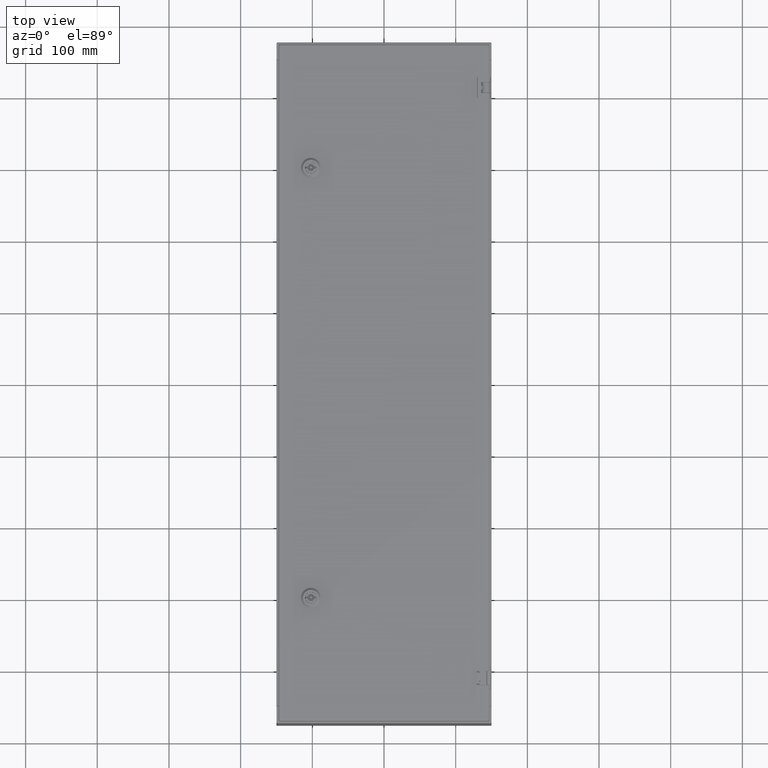
[diagram: clean part render]
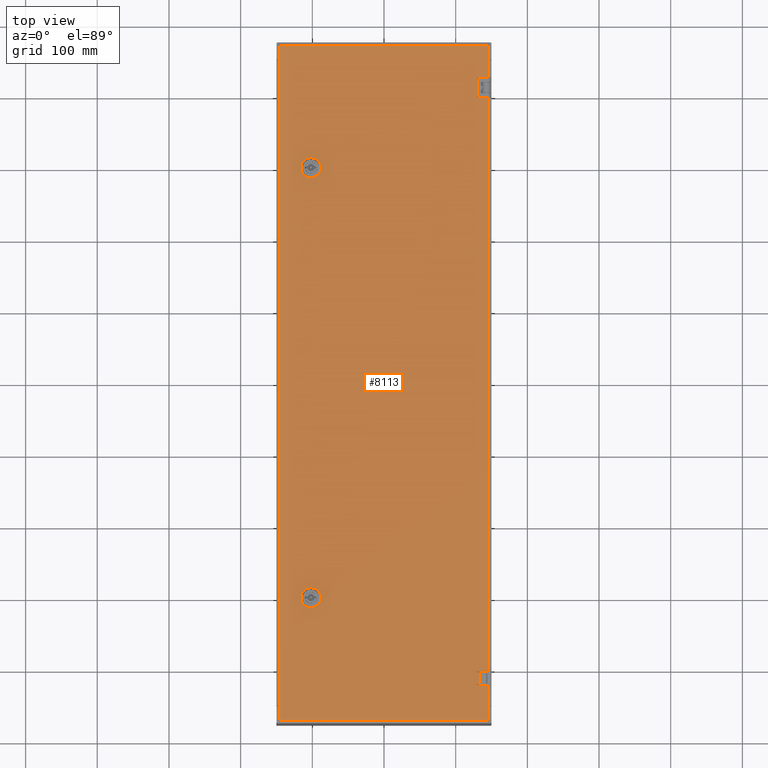
[diagram: same view with one face highlighted and labeled with its STEP entity id]
A machine part, top view. The second image highlights one B-rep face of the part: STEP entity #8113.
In plain terms, the highlighted planar face has unit normal (0, -0, 1).
Its self-contained STEP definition (entity closure, byte-faithful):
#284 = DIRECTION ( 'NONE',  ( 5.105964695398040900E-015, 1.000000000000000000, 3.648940030274840400E-015 ) ) ;
#1275 = CIRCLE ( 'NONE', #74012, 11.24999999999998200 ) ;
#1320 = CARTESIAN_POINT ( 'NONE',  ( -102.0000000000933900, -300.1000000000099700, 213.1000000000030100 ) ) ;
#1385 = VERTEX_POINT ( 'NONE', #6808 ) ;
#2056 = VECTOR ( 'NONE', #76307, 1000.000000000000000 ) ;
#2410 = ORIENTED_EDGE ( 'NONE', *, *, #59798, .F. ) ;
#3129 = DIRECTION ( 'NONE',  ( 1.215000322574152200E-014, -3.648940030274900400E-015, 1.000000000000000000 ) ) ;
#3294 = CARTESIAN_POINT ( 'NONE',  ( -92.20000000008890600, 305.4247171873220200, 213.1000000000050000 ) ) ;
#3516 = DIRECTION ( 'NONE',  ( 8.873882763576131300E-015, 1.000000000000000000, 3.648940030274790700E-015 ) ) ;
#4075 = CARTESIAN_POINT ( 'NONE',  ( -111.8000000000890000, 294.3752828126579900, 213.1000000000050000 ) ) ;
#4395 = EDGE_CURVE ( 'NONE', #37467, #12018, #64899, .T. ) ;
#4510 = CARTESIAN_POINT ( 'NONE',  ( -9.138696049904019300E-011, -0.1000000000107446100, 213.1000000000025200 ) ) ;
#4516 = CARTESIAN_POINT ( 'NONE',  ( 145.4999999999110100, 421.8999999999879800, 213.1000000000025200 ) ) ;
#4537 = VERTEX_POINT ( 'NONE', #3294 ) ;
#4594 = DIRECTION ( 'NONE',  ( 7.401486830834388500E-015, 1.000000000000000000, 2.467162276944796200E-015 ) ) ;
#4691 = CARTESIAN_POINT ( 'NONE',  ( -9.374698904002229300E-011, -309.9000000000104900, 213.1000000000000200 ) ) ;
#4736 = CARTESIAN_POINT ( 'NONE',  ( 145.4999999999056100, -402.1000000000120200, 213.1000000000000200 ) ) ;
#6244 = DIRECTION ( 'NONE',  ( 7.401486830834388500E-015, 1.000000000000000000, 2.467162276944796200E-015 ) ) ;
#6351 = DIRECTION ( 'NONE',  ( 7.617910074183431100E-015, 1.000000000000000000, 3.648940030274805700E-015 ) ) ;
#6692 = CARTESIAN_POINT ( 'NONE',  ( 132.4999999999041900, -402.1000000000120200, 213.1000000000000200 ) ) ;
#6698 = CARTESIAN_POINT ( 'NONE',  ( -145.5000000000877900, 470.5464466093969800, 213.1000000000060200 ) ) ;
#6763 = AXIS2_PLACEMENT_3D ( 'NONE', #78604, #3129, #17034 ) ;
#6808 = CARTESIAN_POINT ( 'NONE',  ( 132.4999999999041900, -422.1000000000119600, 213.1000000000000200 ) ) ;
#6824 = VECTOR ( 'NONE', #84637, 1000.000000000000000 ) ;
#6973 = CARTESIAN_POINT ( 'NONE',  ( -107.5247171874205900, 309.6999999999899800, 213.1000000000050000 ) ) ;
#7185 = CARTESIAN_POINT ( 'NONE',  ( 146.9999999999106100, 401.8999999999879800, 213.1000000000025200 ) ) ;
#7625 = EDGE_CURVE ( 'NONE', #34832, #45114, #8039, .T. ) ;
#7928 = ORIENTED_EDGE ( 'NONE', *, *, #42952, .F. ) ;
#8039 = LINE ( 'NONE', #40549, #60225 ) ;
#8113 = ADVANCED_FACE ( 'NONE', ( #62236, #42014, #53720 ), #37221, .T. ) ;
#8717 = VERTEX_POINT ( 'NONE', #34824 ) ;
#9227 = EDGE_CURVE ( 'NONE', #29786, #41333, #35490, .T. ) ;
#9535 = LINE ( 'NONE', #22475, #2056 ) ;
#9832 = AXIS2_PLACEMENT_3D ( 'NONE', #79476, #84470, #22965 ) ;
#11056 = DIRECTION ( 'NONE',  ( -7.617910074183431100E-015, -1.000000000000000000, -3.648940030274805700E-015 ) ) ;
#12018 = VERTEX_POINT ( 'NONE', #50309 ) ;
#12737 = VECTOR ( 'NONE', #77042, 1000.000000000000000 ) ;
#13094 = CIRCLE ( 'NONE', #6763, 11.24999999999998200 ) ;
#13101 = VECTOR ( 'NONE', #36507, 1000.000000000000000 ) ;
#13641 = ORIENTED_EDGE ( 'NONE', *, *, #40967, .T. ) ;
#14354 = LINE ( 'NONE', #69156, #66506 ) ;
#15157 = EDGE_CURVE ( 'NONE', #41504, #60327, #23452, .T. ) ;
#15194 = CARTESIAN_POINT ( 'NONE',  ( -107.5247171874210000, 290.0999999999899600, 213.1000000000050000 ) ) ;
#15205 = ORIENTED_EDGE ( 'NONE', *, *, #49636, .T. ) ;
#15212 = VERTEX_POINT ( 'NONE', #58669 ) ;
#15938 = DIRECTION ( 'NONE',  ( 7.401486830834388500E-015, 1.000000000000000000, 2.467162276944796200E-015 ) ) ;
#16763 = CARTESIAN_POINT ( 'NONE',  ( -96.47528281276160600, -290.3000000000100200, 213.1000000000030100 ) ) ;
#17034 = DIRECTION ( 'NONE',  ( 7.401486830834388500E-015, 1.000000000000000000, 2.467162276944796200E-015 ) ) ;
#17908 = VERTEX_POINT ( 'NONE', #4516 ) ;
#18531 = LINE ( 'NONE', #37932, #43092 ) ;
#18554 = AXIS2_PLACEMENT_3D ( 'NONE', #1320, #41180, #49202 ) ;
#19041 = EDGE_CURVE ( 'NONE', #63948, #68658, #1275, .T. ) ;
#19365 = VECTOR ( 'NONE', #77811, 1000.000000000000000 ) ;
#19926 = CARTESIAN_POINT ( 'NONE',  ( 145.4999999999050100, -470.7464466094180000, 213.1000000000000200 ) ) ;
#20384 = AXIS2_PLACEMENT_3D ( 'NONE', #76874, #29604, #84531 ) ;
#20509 = EDGE_CURVE ( 'NONE', #1385, #45114, #9535, .T. ) ;
#20944 = LINE ( 'NONE', #24459, #73109 ) ;
#21518 = DIRECTION ( 'NONE',  ( -1.000000000000000000, 7.617910074183390100E-015, 1.215000322574156200E-014 ) ) ;
#21626 = CARTESIAN_POINT ( 'NONE',  ( -96.47528281276170500, -309.9000000000099800, 213.1000000000025200 ) ) ;
#22259 = CARTESIAN_POINT ( 'NONE',  ( -96.47528281275720000, 290.0999999999899600, 213.1000000000050000 ) ) ;
#22475 = CARTESIAN_POINT ( 'NONE',  ( 132.4999999999041900, -422.1000000000119600, 213.1000000000000200 ) ) ;
#22965 = DIRECTION ( 'NONE',  ( 7.401486830834388500E-015, 1.000000000000000000, 2.467162276944796200E-015 ) ) ;
#23452 = LINE ( 'NONE', #45000, #76730 ) ;
#24459 = CARTESIAN_POINT ( 'NONE',  ( -9.359767800256830100E-011, -290.3000000000109800, 213.1000000000000200 ) ) ;
#24846 = VECTOR ( 'NONE', #284, 1000.000000000000000 ) ;
#24906 = LINE ( 'NONE', #84330, #6824 ) ;
#26529 = VERTEX_POINT ( 'NONE', #21626 ) ;
#26692 = EDGE_CURVE ( 'NONE', #68658, #4537, #76432, .T. ) ;
#26760 = EDGE_CURVE ( 'NONE', #8717, #26529, #67884, .T. ) ;
#27058 = CARTESIAN_POINT ( 'NONE',  ( 145.4999999999050100, -470.7464466094180000, 213.1000000000000200 ) ) ;
#27075 = ORIENTED_EDGE ( 'NONE', *, *, #52477, .F. ) ;
#27515 = EDGE_CURVE ( 'NONE', #59130, #41539, #20944, .T. ) ;
#28256 = ORIENTED_EDGE ( 'NONE', *, *, #19041, .F. ) ;
#29056 = VECTOR ( 'NONE', #21518, 1000.000000000000000 ) ;
#29604 = DIRECTION ( 'NONE',  ( 1.215000322574152200E-014, -3.648940030274900400E-015, 1.000000000000000000 ) ) ;
#29726 = VECTOR ( 'NONE', #80695, 1000.000000000000000 ) ;
#29786 = VERTEX_POINT ( 'NONE', #87171 ) ;
#29957 = CARTESIAN_POINT ( 'NONE',  ( -111.8000000000912000, -0.1000000000098930100, 213.1000000000040000 ) ) ;
#32700 = VERTEX_POINT ( 'NONE', #62402 ) ;
#32790 = DIRECTION ( 'NONE',  ( 1.215000322574152200E-014, -3.648940030274900400E-015, 1.000000000000000000 ) ) ;
#32865 = LINE ( 'NONE', #6698, #29726 ) ;
#33644 = ORIENTED_EDGE ( 'NONE', *, *, #65286, .F. ) ;
#33846 = CARTESIAN_POINT ( 'NONE',  ( -92.20000000009190400, -0.1000000000102738200, 213.1000000000040000 ) ) ;
#34824 = CARTESIAN_POINT ( 'NONE',  ( -107.5247171874254000, -309.9000000000099800, 213.1000000000030100 ) ) ;
#34832 = VERTEX_POINT ( 'NONE', #59321 ) ;
#35386 = AXIS2_PLACEMENT_3D ( 'NONE', #77642, #50333, #44678 ) ;
#35490 = LINE ( 'NONE', #33846, #24846 ) ;
#35723 = EDGE_CURVE ( 'NONE', #47811, #12018, #45589, .T. ) ;
#36069 = CARTESIAN_POINT ( 'NONE',  ( -96.47528281275701500, 309.6999999999899800, 213.1000000000050000 ) ) ;
#36473 = ORIENTED_EDGE ( 'NONE', *, *, #50266, .F. ) ;
#36507 = DIRECTION ( 'NONE',  ( -7.617910074183431100E-015, -1.000000000000000000, -3.648940030274805700E-015 ) ) ;
#37034 = EDGE_LOOP ( 'NONE', ( #40553, #60882, #36473, #72727, #7928, #58501, #80191, #84737 ) ) ;
#37221 = PLANE ( 'NONE',  #69606 ) ;
#37467 = VERTEX_POINT ( 'NONE', #43059 ) ;
#37504 = LINE ( 'NONE', #85165, #19365 ) ;
#37932 = CARTESIAN_POINT ( 'NONE',  ( -145.6464466095016000, -470.6000000000100300, 213.1000000000025200 ) ) ;
#37959 = ORIENTED_EDGE ( 'NONE', *, *, #38492, .T. ) ;
#38492 = EDGE_CURVE ( 'NONE', #86300, #15212, #24906, .T. ) ;
#39153 = DIRECTION ( 'NONE',  ( 1.000000000000000000, -7.617910074183390100E-015, -1.215000322574156200E-014 ) ) ;
#39673 = CIRCLE ( 'NONE', #20384, 11.24999999999998200 ) ;
#40549 = CARTESIAN_POINT ( 'NONE',  ( 145.4999999999050100, -470.7464466094180000, 213.1000000000000200 ) ) ;
#40553 = ORIENTED_EDGE ( 'NONE', *, *, #53180, .F. ) ;
#40967 = EDGE_CURVE ( 'NONE', #15212, #83741, #32865, .T. ) ;
#41100 = CIRCLE ( 'NONE', #45472, 11.24999999999998200 ) ;
#41180 = DIRECTION ( 'NONE',  ( 1.215000322574152200E-014, -3.648940030274900400E-015, 1.000000000000000000 ) ) ;
#41261 = VECTOR ( 'NONE', #74360, 1000.000000000000000 ) ;
#41333 = VERTEX_POINT ( 'NONE', #65510 ) ;
#41504 = VERTEX_POINT ( 'NONE', #81804 ) ;
#41539 = VERTEX_POINT ( 'NONE', #55103 ) ;
#42014 = FACE_BOUND ( 'NONE', #58588, .T. ) ;
#42444 = DIRECTION ( 'NONE',  ( 1.215000322574152200E-014, -3.648940030274900400E-015, 1.000000000000000000 ) ) ;
#42633 = ORIENTED_EDGE ( 'NONE', *, *, #48988, .F. ) ;
#42952 = EDGE_CURVE ( 'NONE', #41539, #41504, #77271, .T. ) ;
#43059 = CARTESIAN_POINT ( 'NONE',  ( 132.4999999999104100, 401.8999999999884900, 213.1000000000025200 ) ) ;
#43092 = VECTOR ( 'NONE', #78642, 1000.000000000000000 ) ;
#44678 = DIRECTION ( 'NONE',  ( 7.401486830834388500E-015, 1.000000000000000000, 2.467162276944796200E-015 ) ) ;
#45000 = CARTESIAN_POINT ( 'NONE',  ( -111.8000000000912000, -0.1000000000098930100, 213.1000000000040000 ) ) ;
#45114 = VERTEX_POINT ( 'NONE', #87017 ) ;
#45472 = AXIS2_PLACEMENT_3D ( 'NONE', #83680, #42444, #15938 ) ;
#45589 = LINE ( 'NONE', #27058, #51969 ) ;
#46077 = LINE ( 'NONE', #76552, #29056 ) ;
#46549 = CARTESIAN_POINT ( 'NONE',  ( 132.4999999999106100, 421.8999999999884900, 213.1000000000025200 ) ) ;
#47005 = EDGE_CURVE ( 'NONE', #41333, #59130, #88006, .T. ) ;
#47242 = ORIENTED_EDGE ( 'NONE', *, *, #4395, .F. ) ;
#47547 = EDGE_CURVE ( 'NONE', #17908, #86300, #84775, .T. ) ;
#47620 = DIRECTION ( 'NONE',  ( 7.617910074183431100E-015, 1.000000000000000000, 3.648940030274805700E-015 ) ) ;
#47811 = VERTEX_POINT ( 'NONE', #4736 ) ;
#48386 = EDGE_CURVE ( 'NONE', #72847, #53102, #41100, .T. ) ;
#48988 = EDGE_CURVE ( 'NONE', #78941, #37467, #50575, .T. ) ;
#49202 = DIRECTION ( 'NONE',  ( 7.401486830834388500E-015, 1.000000000000000000, 2.467162276944796200E-015 ) ) ;
#49556 = DIRECTION ( 'NONE',  ( -1.000000000000000000, 7.617910074183390100E-015, 1.215000322574156200E-014 ) ) ;
#49636 = EDGE_CURVE ( 'NONE', #83741, #34832, #18531, .T. ) ;
#49871 = VECTOR ( 'NONE', #39153, 1000.000000000000000 ) ;
#50266 = EDGE_CURVE ( 'NONE', #60327, #8717, #13094, .T. ) ;
#50309 = CARTESIAN_POINT ( 'NONE',  ( 145.4999999999106100, 401.8999999999879800, 213.1000000000025200 ) ) ;
#50333 = DIRECTION ( 'NONE',  ( 1.215000322574152200E-014, -3.648940030274900400E-015, 1.000000000000000000 ) ) ;
#50575 = LINE ( 'NONE', #83481, #87638 ) ;
#51156 = VERTEX_POINT ( 'NONE', #76840 ) ;
#51443 = LINE ( 'NONE', #29957, #13101 ) ;
#51969 = VECTOR ( 'NONE', #47620, 1000.000000000000000 ) ;
#52088 = DIRECTION ( 'NONE',  ( 1.215000322574153300E-014, -3.648940030274900400E-015, 1.000000000000000000 ) ) ;
#52477 = EDGE_CURVE ( 'NONE', #47811, #32700, #71273, .T. ) ;
#52747 = CARTESIAN_POINT ( 'NONE',  ( -102.0000000000889900, 299.8999999999899700, 213.1000000000050000 ) ) ;
#53102 = VERTEX_POINT ( 'NONE', #15194 ) ;
#53180 = EDGE_CURVE ( 'NONE', #26529, #29786, #81916, .T. ) ;
#53664 = EDGE_CURVE ( 'NONE', #53102, #63948, #86073, .T. ) ;
#53720 = FACE_OUTER_BOUND ( 'NONE', #73988, .T. ) ;
#55103 = CARTESIAN_POINT ( 'NONE',  ( -107.5247171874252100, -290.3000000000100200, 213.1000000000030100 ) ) ;
#55196 = CARTESIAN_POINT ( 'NONE',  ( -92.20000000008900500, 294.3752828126579900, 213.1000000000050000 ) ) ;
#57847 = ORIENTED_EDGE ( 'NONE', *, *, #87249, .F. ) ;
#58066 = ORIENTED_EDGE ( 'NONE', *, *, #47547, .T. ) ;
#58324 = DIRECTION ( 'NONE',  ( 1.215000322574152200E-014, -3.648940030274900400E-015, 1.000000000000000000 ) ) ;
#58400 = VECTOR ( 'NONE', #3516, 1000.000000000000000 ) ;
#58501 = ORIENTED_EDGE ( 'NONE', *, *, #27515, .F. ) ;
#58588 = EDGE_LOOP ( 'NONE', ( #2410, #33644, #57847, #65327, #28256, #61395, #80856, #67058 ) ) ;
#58669 = CARTESIAN_POINT ( 'NONE',  ( -145.5000000000874000, 470.3999999999899700, 213.1000000000060200 ) ) ;
#59130 = VERTEX_POINT ( 'NONE', #16763 ) ;
#59321 = CARTESIAN_POINT ( 'NONE',  ( 145.4999999999012100, -470.6000000000120200, 213.1000000000000200 ) ) ;
#59487 = CARTESIAN_POINT ( 'NONE',  ( 145.4999999999124300, 470.3999999999899700, 213.1000000000025200 ) ) ;
#59798 = EDGE_CURVE ( 'NONE', #82690, #51156, #39673, .T. ) ;
#59818 = CARTESIAN_POINT ( 'NONE',  ( -102.0000000000933900, -300.1000000000099700, 213.1000000000030100 ) ) ;
#60225 = VECTOR ( 'NONE', #6351, 1000.000000000000000 ) ;
#60327 = VERTEX_POINT ( 'NONE', #82122 ) ;
#60390 = CARTESIAN_POINT ( 'NONE',  ( -145.5000000000949900, -470.6000000000100300, 213.1000000000025200 ) ) ;
#60882 = ORIENTED_EDGE ( 'NONE', *, *, #26760, .F. ) ;
#61395 = ORIENTED_EDGE ( 'NONE', *, *, #53664, .F. ) ;
#61501 = DIRECTION ( 'NONE',  ( -4.842352512620540500E-015, -1.000000000000000000, -3.648940030274840400E-015 ) ) ;
#61967 = ORIENTED_EDGE ( 'NONE', *, *, #7625, .T. ) ;
#62236 = FACE_BOUND ( 'NONE', #37034, .T. ) ;
#62402 = CARTESIAN_POINT ( 'NONE',  ( 132.4999999999041900, -402.1000000000120200, 213.1000000000000200 ) ) ;
#63457 = VERTEX_POINT ( 'NONE', #36069 ) ;
#63948 = VERTEX_POINT ( 'NONE', #22259 ) ;
#64075 = DIRECTION ( 'NONE',  ( 1.000000000000000000, -7.617910074183390100E-015, -1.215000322574156200E-014 ) ) ;
#64870 = DIRECTION ( 'NONE',  ( 1.000000000000000000, -7.617910074183390100E-015, -1.215000322574156200E-014 ) ) ;
#64899 = LINE ( 'NONE', #7185, #12737 ) ;
#65286 = EDGE_CURVE ( 'NONE', #63457, #82690, #37504, .T. ) ;
#65327 = ORIENTED_EDGE ( 'NONE', *, *, #26692, .F. ) ;
#65510 = CARTESIAN_POINT ( 'NONE',  ( -92.20000000009349600, -294.5752828126779800, 213.1000000000025200 ) ) ;
#66373 = ORIENTED_EDGE ( 'NONE', *, *, #82154, .F. ) ;
#66506 = VECTOR ( 'NONE', #61501, 1000.000000000000000 ) ;
#66607 = ORIENTED_EDGE ( 'NONE', *, *, #35723, .T. ) ;
#67058 = ORIENTED_EDGE ( 'NONE', *, *, #70026, .F. ) ;
#67884 = LINE ( 'NONE', #4691, #49871 ) ;
#68046 = VECTOR ( 'NONE', #64075, 1000.000000000000000 ) ;
#68658 = VERTEX_POINT ( 'NONE', #55196 ) ;
#69156 = CARTESIAN_POINT ( 'NONE',  ( 132.4999999999041900, -402.1000000000120200, 213.1000000000000200 ) ) ;
#69560 = AXIS2_PLACEMENT_3D ( 'NONE', #59818, #58324, #6244 ) ;
#69606 = AXIS2_PLACEMENT_3D ( 'NONE', #4510, #52088, #64870 ) ;
#70026 = EDGE_CURVE ( 'NONE', #51156, #72847, #51443, .T. ) ;
#70576 = CARTESIAN_POINT ( 'NONE',  ( -8.917624299551220100E-011, 290.0999999999894500, 213.1000000000035200 ) ) ;
#71273 = LINE ( 'NONE', #6692, #87138 ) ;
#71573 = CARTESIAN_POINT ( 'NONE',  ( -92.20000000009159200, -0.1000000000099264000, 213.1000000000040000 ) ) ;
#72727 = ORIENTED_EDGE ( 'NONE', *, *, #15157, .F. ) ;
#72847 = VERTEX_POINT ( 'NONE', #4075 ) ;
#72917 = DIRECTION ( 'NONE',  ( -1.000000000000000000, 7.617910074183390100E-015, 1.215000322574156200E-014 ) ) ;
#73109 = VECTOR ( 'NONE', #72917, 1000.000000000000000 ) ;
#73988 = EDGE_LOOP ( 'NONE', ( #27075, #66607, #47242, #42633, #82116, #58066, #37959, #13641, #15205, #61967, #75597, #66373 ) ) ;
#74012 = AXIS2_PLACEMENT_3D ( 'NONE', #52747, #32790, #4594 ) ;
#74360 = DIRECTION ( 'NONE',  ( 7.617910074183431100E-015, 1.000000000000000000, 3.648940030274805700E-015 ) ) ;
#75597 = ORIENTED_EDGE ( 'NONE', *, *, #20509, .F. ) ;
#76307 = DIRECTION ( 'NONE',  ( 1.000000000000000000, -7.617910074183390100E-015, -1.215000322574156200E-014 ) ) ;
#76432 = LINE ( 'NONE', #71573, #58400 ) ;
#76552 = CARTESIAN_POINT ( 'NONE',  ( 146.9999999999106100, 421.8999999999879800, 213.1000000000025200 ) ) ;
#76730 = VECTOR ( 'NONE', #11056, 1000.000000000000000 ) ;
#76840 = CARTESIAN_POINT ( 'NONE',  ( -111.8000000000890000, 305.4247171873220200, 213.1000000000050000 ) ) ;
#76874 = CARTESIAN_POINT ( 'NONE',  ( -102.0000000000889900, 299.8999999999899700, 213.1000000000050000 ) ) ;
#77004 = DIRECTION ( 'NONE',  ( -1.039346763574632100E-014, -1.000000000000000000, -3.648940030274775700E-015 ) ) ;
#77042 = DIRECTION ( 'NONE',  ( 1.000000000000000000, -7.617910074183390100E-015, -1.215000322574156200E-014 ) ) ;
#77271 = CIRCLE ( 'NONE', #69560, 11.24999999999998200 ) ;
#77642 = CARTESIAN_POINT ( 'NONE',  ( -102.0000000000933900, -300.1000000000099700, 213.1000000000030100 ) ) ;
#77811 = DIRECTION ( 'NONE',  ( -1.000000000000000000, 7.617910074183390100E-015, 1.215000322574156200E-014 ) ) ;
#78604 = CARTESIAN_POINT ( 'NONE',  ( -102.0000000000933900, -300.1000000000099700, 213.1000000000030100 ) ) ;
#78642 = DIRECTION ( 'NONE',  ( 1.000000000000000000, -7.617910074183390100E-015, -1.215000322574156200E-014 ) ) ;
#78941 = VERTEX_POINT ( 'NONE', #46549 ) ;
#79476 = CARTESIAN_POINT ( 'NONE',  ( -102.0000000000889900, 299.8999999999899700, 213.1000000000050000 ) ) ;
#80191 = ORIENTED_EDGE ( 'NONE', *, *, #47005, .F. ) ;
#80337 = CIRCLE ( 'NONE', #9832, 11.24999999999998200 ) ;
#80695 = DIRECTION ( 'NONE',  ( -7.617910074183431100E-015, -1.000000000000000000, -3.648940030274805700E-015 ) ) ;
#80856 = ORIENTED_EDGE ( 'NONE', *, *, #48386, .F. ) ;
#81804 = CARTESIAN_POINT ( 'NONE',  ( -111.8000000000933900, -294.5752828126779800, 213.1000000000030100 ) ) ;
#81916 = CIRCLE ( 'NONE', #35386, 11.24999999999998200 ) ;
#82116 = ORIENTED_EDGE ( 'NONE', *, *, #83851, .F. ) ;
#82122 = CARTESIAN_POINT ( 'NONE',  ( -111.8000000000936000, -305.6247171873419600, 213.1000000000030100 ) ) ;
#82154 = EDGE_CURVE ( 'NONE', #32700, #1385, #14354, .T. ) ;
#82690 = VERTEX_POINT ( 'NONE', #6973 ) ;
#83481 = CARTESIAN_POINT ( 'NONE',  ( 132.4999999999106100, 421.8999999999884900, 213.1000000000025200 ) ) ;
#83680 = CARTESIAN_POINT ( 'NONE',  ( -102.0000000000889900, 299.8999999999899700, 213.1000000000050000 ) ) ;
#83741 = VERTEX_POINT ( 'NONE', #60390 ) ;
#83851 = EDGE_CURVE ( 'NONE', #17908, #78941, #46077, .T. ) ;
#84330 = CARTESIAN_POINT ( 'NONE',  ( 145.6464466093189900, 470.3999999999879800, 213.1000000000025200 ) ) ;
#84470 = DIRECTION ( 'NONE',  ( 1.215000322574152200E-014, -3.648940030274900400E-015, 1.000000000000000000 ) ) ;
#84531 = DIRECTION ( 'NONE',  ( 7.401486830834388500E-015, 1.000000000000000000, 2.467162276944796200E-015 ) ) ;
#84637 = DIRECTION ( 'NONE',  ( -1.000000000000000000, 7.617910074183390100E-015, 1.215000322574156200E-014 ) ) ;
#84737 = ORIENTED_EDGE ( 'NONE', *, *, #9227, .F. ) ;
#84775 = LINE ( 'NONE', #19926, #41261 ) ;
#85165 = CARTESIAN_POINT ( 'NONE',  ( -8.902693195805820900E-011, 309.6999999999889600, 213.1000000000040000 ) ) ;
#86073 = LINE ( 'NONE', #70576, #68046 ) ;
#86300 = VERTEX_POINT ( 'NONE', #59487 ) ;
#87017 = CARTESIAN_POINT ( 'NONE',  ( 145.4999999999054100, -422.1000000000119600, 213.1000000000000200 ) ) ;
#87138 = VECTOR ( 'NONE', #49556, 1000.000000000000000 ) ;
#87171 = CARTESIAN_POINT ( 'NONE',  ( -92.20000000009349600, -305.6247171873419600, 213.1000000000025200 ) ) ;
#87249 = EDGE_CURVE ( 'NONE', #4537, #63457, #80337, .T. ) ;
#87638 = VECTOR ( 'NONE', #77004, 1000.000000000000000 ) ;
#88006 = CIRCLE ( 'NONE', #18554, 11.24999999999998200 ) ;